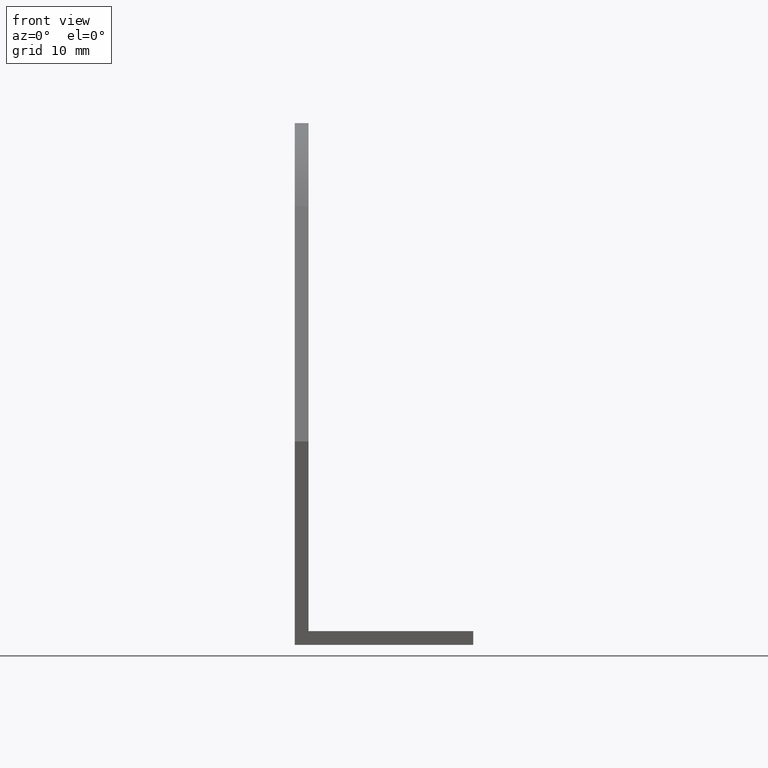
[diagram: clean part render]
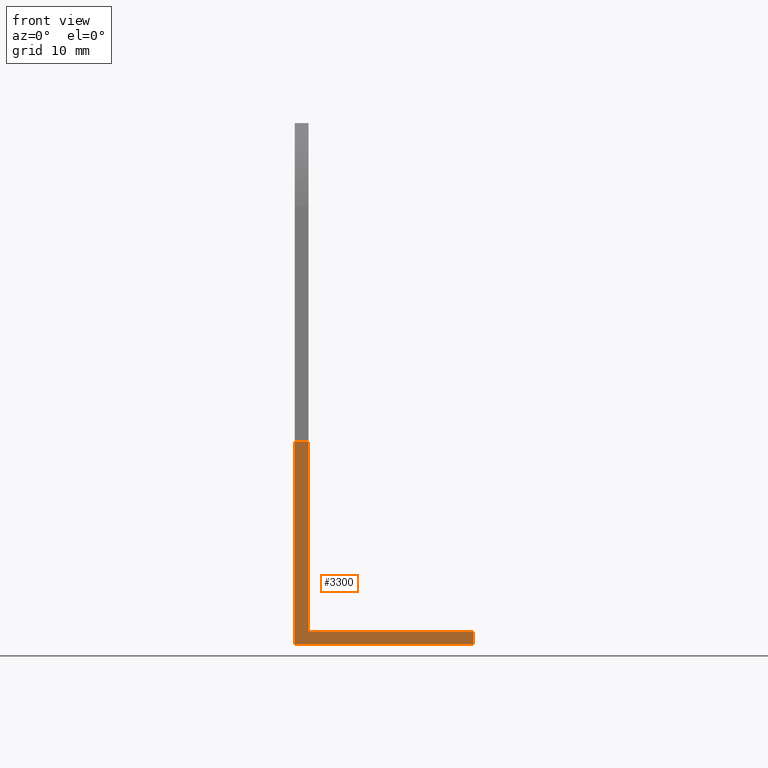
[diagram: same view with one face highlighted and labeled with its STEP entity id]
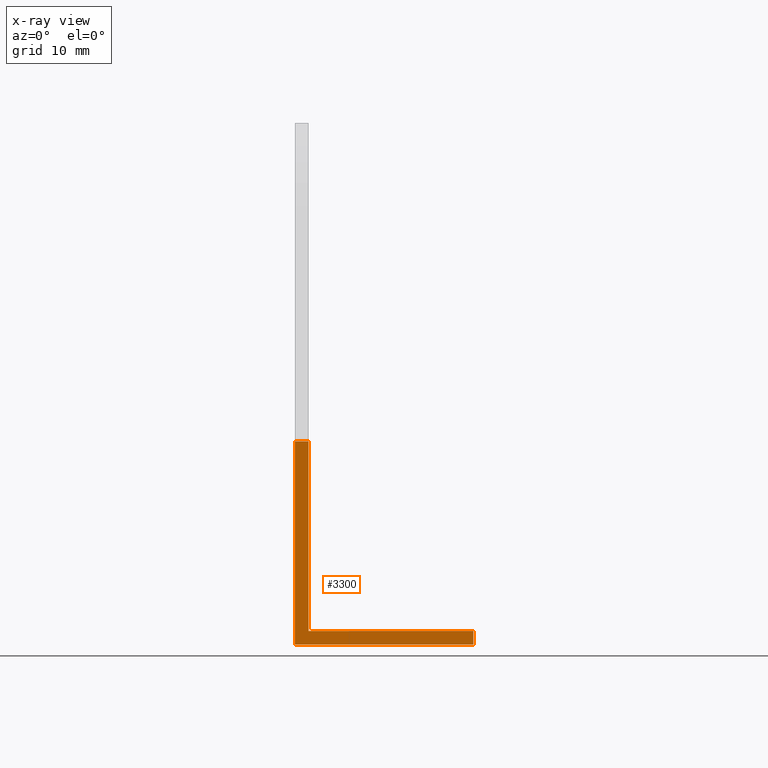
[diagram: x-ray of the same camera — body ghosted, the highlighted face saturated]
A machine part, front view. The second image highlights one B-rep face of the part: STEP entity #3300.
The next image is the same camera in x-ray: the body ghosted, the highlighted face saturated — about 0% of this face is hidden behind the body in this view.
In plain terms, the highlighted planar face has unit normal (0, -1, 0).
Its self-contained STEP definition (entity closure, byte-faithful):
#900=CARTESIAN_POINT('',(-35.,-53.,2.));
#910=VERTEX_POINT('',#900);
#940=CARTESIAN_POINT('',(-35.,-26.4759822848468,2.));
#950=DIRECTION('',(0.,-1.,0.));
#960=VECTOR('',#950,1.);
#970=LINE('',#940,#960);
#980=CARTESIAN_POINT('',(-35.,-25.3675089716321,2.));
#990=VERTEX_POINT('',#980);
#1000=EDGE_CURVE('',#990,#910,#970,.T.);
#2110=CARTESIAN_POINT('',(-35.,-55.,0.));
#2120=VERTEX_POINT('',#2110);
#2440=CARTESIAN_POINT('',(-35.,-25.3675089716321,0.));
#2450=VERTEX_POINT('',#2440);
#2480=CARTESIAN_POINT('',(-35.,-26.4759822848468,0.));
#2490=DIRECTION('',(0.,-1.,0.));
#2500=VECTOR('',#2490,1.);
#2510=LINE('',#2480,#2500);
#2520=EDGE_CURVE('',#2450,#2120,#2510,.T.);
#2930=CARTESIAN_POINT('',(-35.,-51.,2.));
#2940=DIRECTION('',(-1.,0.,0.));
#2950=DIRECTION('',(0.,0.,1.));
#2960=AXIS2_PLACEMENT_3D('',#2930,#2940,#2950);
#2970=PLANE('',#2960);
#2980=ORIENTED_EDGE('',*,*,#2520,.T.);
#2990=CARTESIAN_POINT('',(-35.,-25.3675089716321,0.));
#3000=DIRECTION('',(0.,0.,1.));
#3010=VECTOR('',#3000,1.);
#3020=LINE('',#2990,#3010);
#3030=EDGE_CURVE('',#2450,#990,#3020,.T.);
#3040=ORIENTED_EDGE('',*,*,#3030,.F.);
#3050=ORIENTED_EDGE('',*,*,#1000,.F.);
#3060=CARTESIAN_POINT('',(-35.,-53.,21.));
#3070=DIRECTION('',(0.,0.,-1.));
#3080=VECTOR('',#3070,1.);
#3090=LINE('',#3060,#3080);
#3100=CARTESIAN_POINT('',(-35.,-53.,26.));
#3110=VERTEX_POINT('',#3100);
#3120=EDGE_CURVE('',#3110,#910,#3090,.T.);
#3130=ORIENTED_EDGE('',*,*,#3120,.T.);
#3140=CARTESIAN_POINT('',(-35.,0.,26.));
#3150=DIRECTION('',(0.,-1.,0.));
#3160=VECTOR('',#3150,1.);
#3170=LINE('',#3140,#3160);
#3180=CARTESIAN_POINT('',(-35.,-55.,26.));
#3190=VERTEX_POINT('',#3180);
#3200=EDGE_CURVE('',#3110,#3190,#3170,.T.);
#3210=ORIENTED_EDGE('',*,*,#3200,.F.);
#3220=CARTESIAN_POINT('',(-35.,-55.,21.));
#3230=DIRECTION('',(0.,0.,-1.));
#3240=VECTOR('',#3230,1.);
#3250=LINE('',#3220,#3240);
#3260=EDGE_CURVE('',#3190,#2120,#3250,.T.);
#3270=ORIENTED_EDGE('',*,*,#3260,.F.);
#3280=EDGE_LOOP('',(#3270,#3210,#3130,#3050,#3040,#2980));
#3290=FACE_OUTER_BOUND('',#3280,.T.);
#3300=ADVANCED_FACE('',(#3290),#2970,.T.);